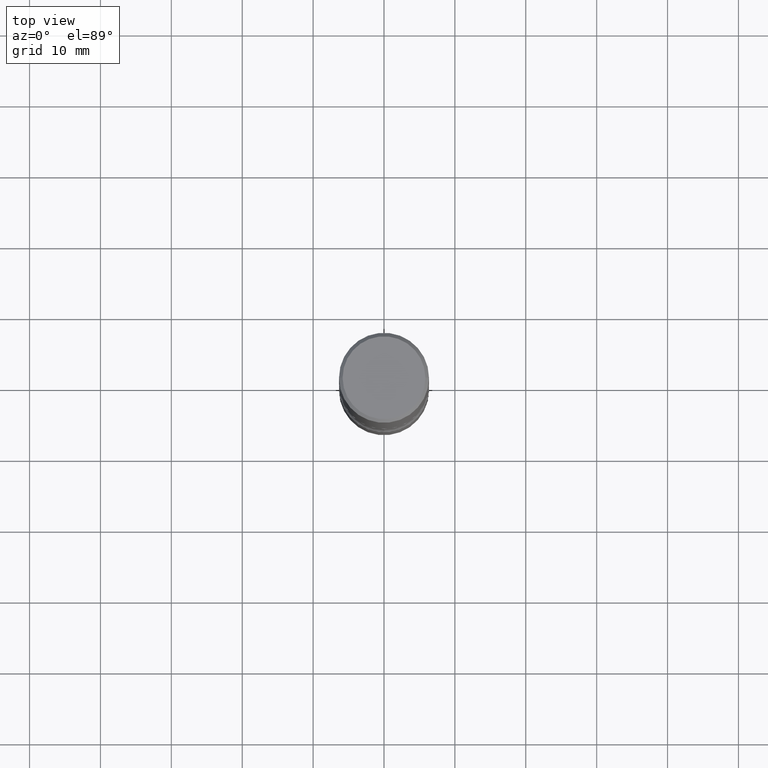
[diagram: clean part render]
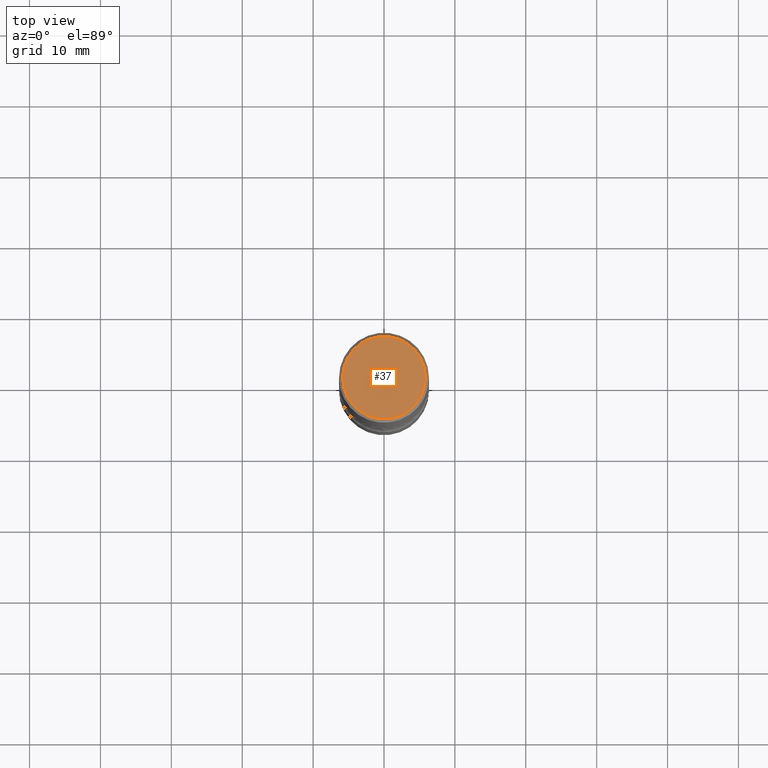
[diagram: same view with one face highlighted and labeled with its STEP entity id]
A machine part, top view. The second image highlights one B-rep face of the part: STEP entity #37.
In plain terms, the highlighted planar face has unit normal (0, -0, -1).
Its self-contained STEP definition (entity closure, byte-faithful):
#12 = EDGE_CURVE ( 'NONE', #272, #25, #185, .T. ) ;
#23 = DIRECTION ( 'NONE',  ( -2.445468806185136597E-29, 3.491481338843145583E-15, 1.000000000000000000 ) ) ;
#25 = VERTEX_POINT ( 'NONE', #31 ) ;
#31 = CARTESIAN_POINT ( 'NONE',  ( 0.2299999999999997047, -1.681434332853597236E-15, 1.149527484987431679E-29 ) ) ;
#37 = ADVANCED_FACE ( 'NONE', ( #392 ), #307, .F. ) ;
#67 = CARTESIAN_POINT ( 'NONE',  ( 0.000000000000000000, 0.000000000000000000, 0.000000000000000000 ) ) ;
#120 = ORIENTED_EDGE ( 'NONE', *, *, #410, .T. ) ;
#137 = CARTESIAN_POINT ( 'NONE',  ( -0.2299999999999997047, 1.640996229256270744E-15, -1.135408596578604579E-29 ) ) ;
#154 = CIRCLE ( 'NONE', #486, 0.2299999999999997047 ) ;
#167 = DIRECTION ( 'NONE',  ( 1.000000000000000000, -6.982962677686266711E-15, 4.876176775795935793E-29 ) ) ;
#185 = CIRCLE ( 'NONE', #401, 0.2299999999999997047 ) ;
#194 = EDGE_LOOP ( 'NONE', ( #540, #120 ) ) ;
#234 = DIRECTION ( 'NONE',  ( 1.000000000000000000, -6.982962677686266711E-15, 4.876176775795935793E-29 ) ) ;
#272 = VERTEX_POINT ( 'NONE', #137 ) ;
#307 = PLANE ( 'NONE',  #474 ) ;
#392 = FACE_OUTER_BOUND ( 'NONE', #194, .T. ) ;
#401 = AXIS2_PLACEMENT_3D ( 'NONE', #427, #23, #234 ) ;
#410 = EDGE_CURVE ( 'NONE', #25, #272, #154, .T. ) ;
#427 = CARTESIAN_POINT ( 'NONE',  ( 0.000000000000000000, 0.000000000000000000, 0.000000000000000000 ) ) ;
#435 = DIRECTION ( 'NONE',  ( 2.438088387897960049E-29, -3.491481338843145188E-15, -1.000000000000000000 ) ) ;
#456 = DIRECTION ( 'NONE',  ( -2.445468806185136597E-29, 3.491481338843145583E-15, 1.000000000000000000 ) ) ;
#474 = AXIS2_PLACEMENT_3D ( 'NONE', #515, #435, #479 ) ;
#479 = DIRECTION ( 'NONE',  ( -1.000000000000000000, 6.982962677686265922E-15, -4.876176775795935793E-29 ) ) ;
#486 = AXIS2_PLACEMENT_3D ( 'NONE', #67, #456, #167 ) ;
#515 = CARTESIAN_POINT ( 'NONE',  ( 1.606081415867839095E-15, 0.2299999999999997047, -8.030407079339224072E-16 ) ) ;
#540 = ORIENTED_EDGE ( 'NONE', *, *, #12, .T. ) ;